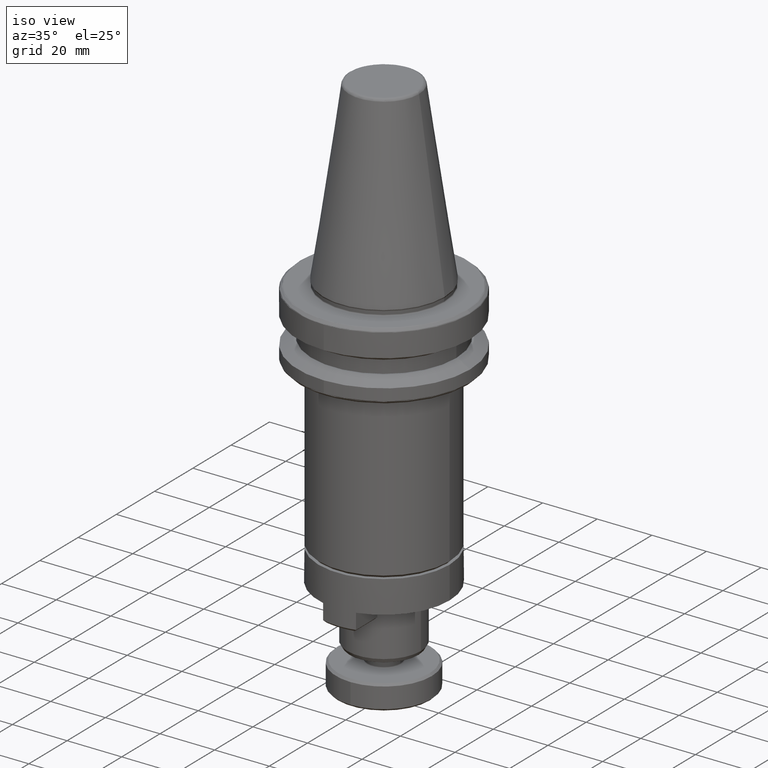
[diagram: clean part render]
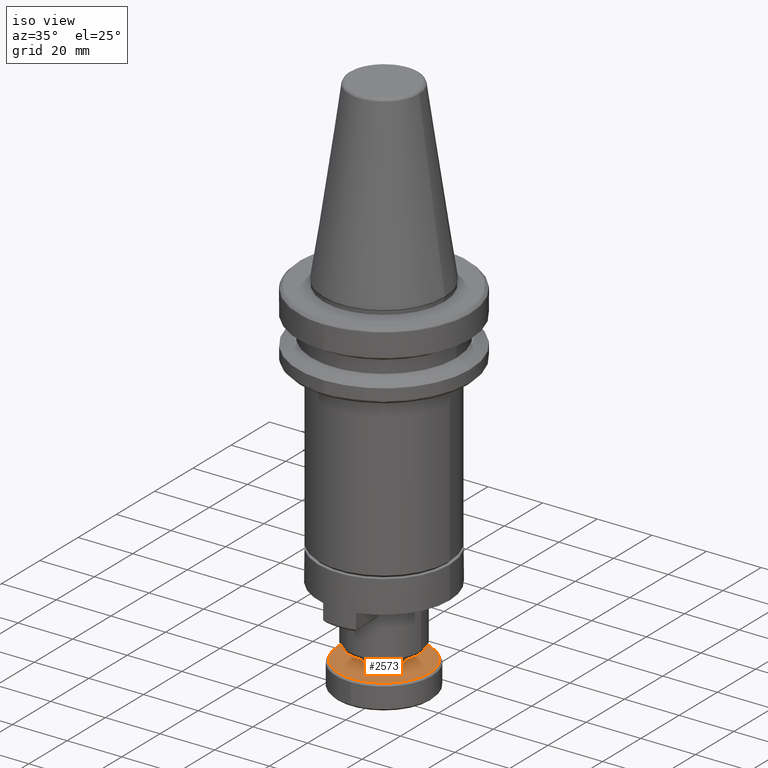
[diagram: same view with one face highlighted and labeled with its STEP entity id]
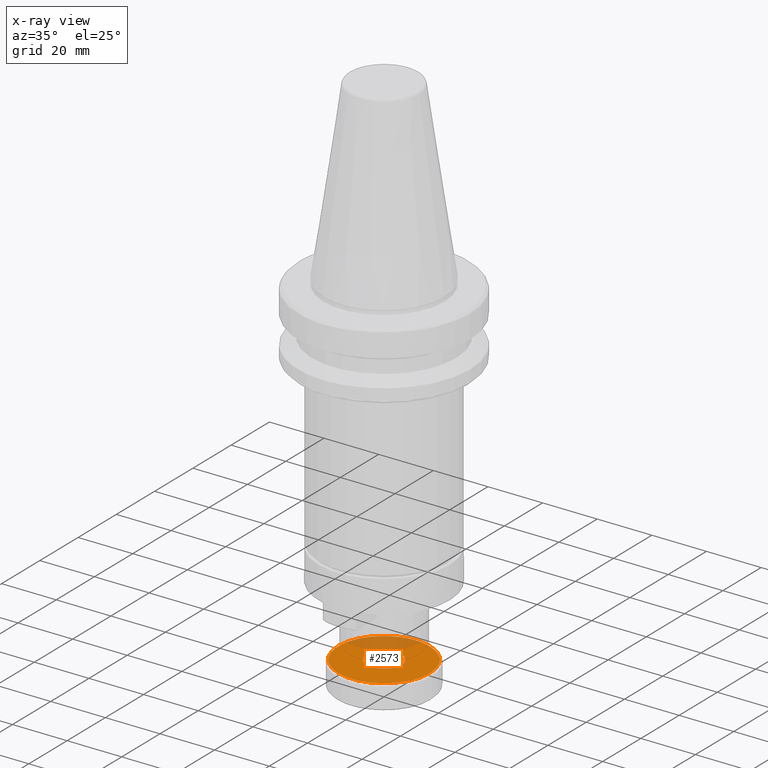
[diagram: x-ray of the same camera — body ghosted, the highlighted face saturated]
A machine part, iso view. The second image highlights one B-rep face of the part: STEP entity #2573.
The next image is the same camera in x-ray: the body ghosted, the highlighted face saturated — about 22% of this face is hidden behind the body in this view.
In plain terms, the highlighted planar face has unit normal (0, 0, 1).
Its self-contained STEP definition (entity closure, byte-faithful):
#270 = FACE_OUTER_BOUND ( 'NONE', #273, .T. ) ;
#273 = EDGE_LOOP ( 'NONE', ( #3677, #3585 ) ) ;
#319 = FACE_BOUND ( 'NONE', #879, .T. ) ;
#452 = DIRECTION ( 'NONE',  ( -0.0000000000000000000, -0.0000000000000000000, 1.000000000000000000 ) ) ;
#462 = CARTESIAN_POINT ( 'NONE',  ( -16.95100000000000100, -16.95100000000000100, -126.0000000000000000 ) ) ;
#471 = CARTESIAN_POINT ( 'NONE',  ( 0.0000000000000000000, 0.0000000000000000000, -125.9999999998892500 ) ) ;
#475 = DIRECTION ( 'NONE',  ( -0.0000000000000000000, 0.0000000000000000000, -1.000000000000000000 ) ) ;
#481 = DIRECTION ( 'NONE',  ( 1.000000000000000000, 0.0000000000000000000, 0.0000000000000000000 ) ) ;
#497 = AXIS2_PLACEMENT_3D ( 'NONE', #749, #452, #1379 ) ;
#563 = CARTESIAN_POINT ( 'NONE',  ( 6.400000000335908500, 0.0000000000000000000, -125.9999999998892500 ) ) ;
#601 = CIRCLE ( 'NONE', #3218, 6.400000000345490200 ) ;
#696 = CARTESIAN_POINT ( 'NONE',  ( 0.0000000000000000000, 0.0000000000000000000, -126.0000000000000000 ) ) ;
#727 = PLANE ( 'NONE',  #3793 ) ;
#749 = CARTESIAN_POINT ( 'NONE',  ( 0.0000000000000000000, 0.0000000000000000000, -126.0000000000000000 ) ) ;
#836 = CIRCLE ( 'NONE', #497, 16.75000000000000000 ) ;
#849 = EDGE_CURVE ( 'NONE', #2068, #1704, #2335, .T. ) ;
#879 = EDGE_LOOP ( 'NONE', ( #3753, #2053 ) ) ;
#966 = VERTEX_POINT ( 'NONE', #2007 ) ;
#973 = DIRECTION ( 'NONE',  ( -0.0000000000000000000, 0.0000000000000000000, -1.000000000000000000 ) ) ;
#1053 = DIRECTION ( 'NONE',  ( 1.000000000000000000, 0.0000000000000000000, 0.0000000000000000000 ) ) ;
#1090 = VERTEX_POINT ( 'NONE', #563 ) ;
#1157 = EDGE_CURVE ( 'NONE', #1704, #2068, #836, .T. ) ;
#1161 = AXIS2_PLACEMENT_3D ( 'NONE', #696, #2928, #3234 ) ;
#1376 = EDGE_CURVE ( 'NONE', #1090, #966, #2909, .T. ) ;
#1379 = DIRECTION ( 'NONE',  ( -1.000000000000000000, 0.0000000000000000000, 0.0000000000000000000 ) ) ;
#1667 = CARTESIAN_POINT ( 'NONE',  ( 16.75000000000000000, 2.097207643539842200E-015, -126.0000000000000000 ) ) ;
#1704 = VERTEX_POINT ( 'NONE', #1667 ) ;
#2007 = CARTESIAN_POINT ( 'NONE',  ( -6.400000000335908500, 7.837739514954430200E-016, -125.9999999998892500 ) ) ;
#2053 = ORIENTED_EDGE ( 'NONE', *, *, #3262, .T. ) ;
#2068 = VERTEX_POINT ( 'NONE', #3779 ) ;
#2335 = CIRCLE ( 'NONE', #1161, 16.75000000000000000 ) ;
#2573 = ADVANCED_FACE ( 'NONE', ( #319, #270 ), #727, .T. ) ;
#2737 = CARTESIAN_POINT ( 'NONE',  ( 0.0000000000000000000, 0.0000000000000000000, -125.9999999998892500 ) ) ;
#2828 = DIRECTION ( 'NONE',  ( 0.0000000000000000000, 0.0000000000000000000, 1.000000000000000000 ) ) ;
#2909 = CIRCLE ( 'NONE', #3067, 6.400000000345490200 ) ;
#2928 = DIRECTION ( 'NONE',  ( -0.0000000000000000000, -0.0000000000000000000, 1.000000000000000000 ) ) ;
#3034 = DIRECTION ( 'NONE',  ( 1.000000000000000000, 0.0000000000000000000, 0.0000000000000000000 ) ) ;
#3067 = AXIS2_PLACEMENT_3D ( 'NONE', #471, #475, #481 ) ;
#3218 = AXIS2_PLACEMENT_3D ( 'NONE', #2737, #973, #3034 ) ;
#3234 = DIRECTION ( 'NONE',  ( -1.000000000000000000, 0.0000000000000000000, 0.0000000000000000000 ) ) ;
#3262 = EDGE_CURVE ( 'NONE', #966, #1090, #601, .T. ) ;
#3585 = ORIENTED_EDGE ( 'NONE', *, *, #1157, .T. ) ;
#3677 = ORIENTED_EDGE ( 'NONE', *, *, #849, .T. ) ;
#3753 = ORIENTED_EDGE ( 'NONE', *, *, #1376, .T. ) ;
#3779 = CARTESIAN_POINT ( 'NONE',  ( -16.75000000000000000, 0.0000000000000000000, -126.0000000000000000 ) ) ;
#3793 = AXIS2_PLACEMENT_3D ( 'NONE', #462, #2828, #1053 ) ;